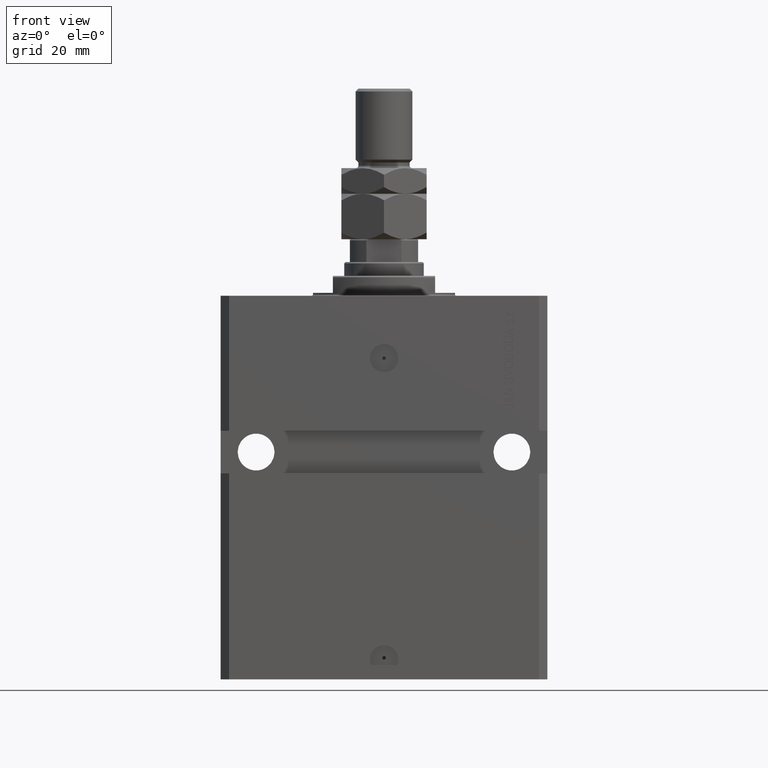
[diagram: clean part render]
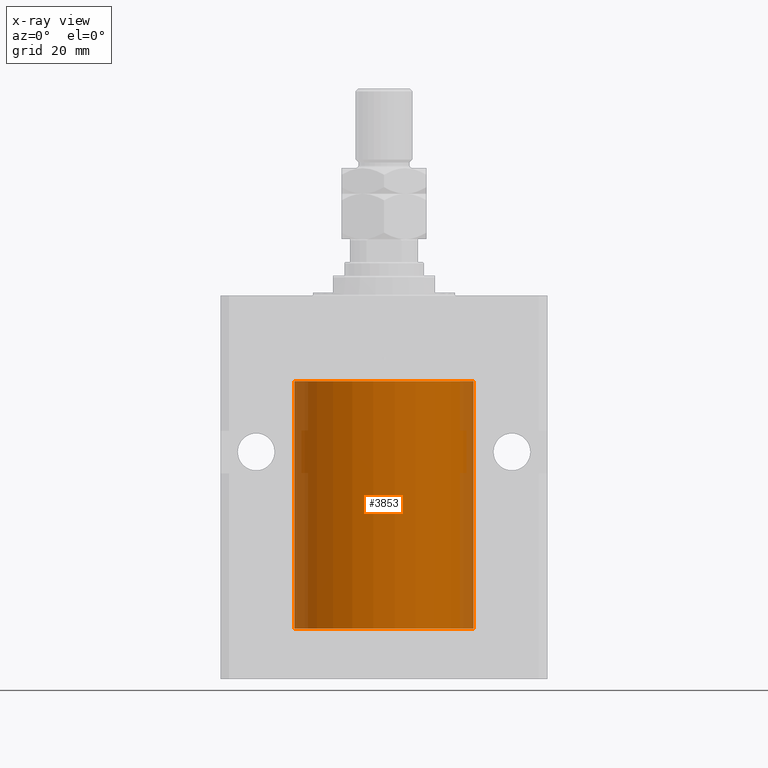
[diagram: x-ray — body ghosted, one internal face saturated and labeled with its STEP entity id]
A machine part, front view, then the same camera in x-ray: the body is ghosted and one INTERNAL B-rep face — a face not visible from any outside direction — is saturated and labeled: STEP entity #3853.
In plain terms, the highlighted cylindrical surface (partial cylindrical patch) has radius 31.5 mm, axis along (0, 0, 1).
Its self-contained STEP definition (entity closure, byte-faithful):
#755 = CARTESIAN_POINT ( 'NONE',  ( 0.000000000000000000, 0.000000000000000000, -117.0999999999999943 ) ) ;
#784 = EDGE_CURVE ( 'NONE', #49565, #29878, #47738, .T. ) ;
#1030 = CARTESIAN_POINT ( 'NONE',  ( -31.50000000000000000, 3.857637417314162689E-15, -117.0999999999999943 ) ) ;
#1051 = CARTESIAN_POINT ( 'NONE',  ( 0.000000000000000000, 0.000000000000000000, -117.0999999999999943 ) ) ;
#1139 = DIRECTION ( 'NONE',  ( 0.000000000000000000, 0.000000000000000000, 1.000000000000000000 ) ) ;
#3170 = CARTESIAN_POINT ( 'NONE',  ( -31.49379625064871391, -0.6251381781549172345, -113.8356839311847466 ) ) ;
#3665 = CARTESIAN_POINT ( 'NONE',  ( -31.49999999999999289, -0.1651478413229920950, -113.3749999999999858 ) ) ;
#3853 = ADVANCED_FACE ( 'NONE', ( #39853 ), #40358, .F. ) ;
#5444 = CARTESIAN_POINT ( 'NONE',  ( 0.000000000000000000, 0.000000000000000000, -30.10000000000000142 ) ) ;
#5575 = DIRECTION ( 'NONE',  ( 1.000000000000000000, 0.000000000000000000, 0.000000000000000000 ) ) ;
#5600 = CARTESIAN_POINT ( 'NONE',  ( -31.50000000000006395, 3.480981129463732167E-13, -114.6250000000032401 ) ) ;
#5623 = VERTEX_POINT ( 'NONE', #49435 ) ;
#7573 = ORIENTED_EDGE ( 'NONE', *, *, #24970, .T. ) ;
#7840 = CIRCLE ( 'NONE', #16729, 31.50000000000000000 ) ;
#9106 = CARTESIAN_POINT ( 'NONE',  ( -31.50000000000000000, 3.857637417314162689E-15, -30.10000000000000142 ) ) ;
#9147 = ORIENTED_EDGE ( 'NONE', *, *, #34776, .T. ) ;
#9417 = DIRECTION ( 'NONE',  ( 0.000000000000000000, 0.000000000000000000, 1.000000000000000000 ) ) ;
#10788 = CARTESIAN_POINT ( 'NONE',  ( 31.50000000000000000, 0.000000000000000000, -117.0999999999999943 ) ) ;
#11027 = DIRECTION ( 'NONE',  ( -0.000000000000000000, -0.000000000000000000, 1.000000000000000000 ) ) ;
#11974 = VERTEX_POINT ( 'NONE', #13248 ) ;
#13248 = CARTESIAN_POINT ( 'NONE',  ( -31.50000000000000000, -2.862469004324082213E-15, -113.3750000000000000 ) ) ;
#13372 = CARTESIAN_POINT ( 'NONE',  ( 31.50000000000000000, 0.000000000000000000, -30.10000000000000142 ) ) ;
#13915 = DIRECTION ( 'NONE',  ( -0.000000000000000000, -0.000000000000000000, 1.000000000000000000 ) ) ;
#14613 = AXIS2_PLACEMENT_3D ( 'NONE', #755, #17246, #5575 ) ;
#14842 = CARTESIAN_POINT ( 'NONE',  ( -31.49528704891774211, -0.5569519313505083558, -114.3270938121662539 ) ) ;
#16729 = AXIS2_PLACEMENT_3D ( 'NONE', #1051, #9417, #36831 ) ;
#17095 = VECTOR ( 'NONE', #11027, 1000.000000000000000 ) ;
#17246 = DIRECTION ( 'NONE',  ( -0.000000000000000000, -0.000000000000000000, 1.000000000000000000 ) ) ;
#17277 = ORIENTED_EDGE ( 'NONE', *, *, #784, .T. ) ;
#17446 = LINE ( 'NONE', #44906, #42791 ) ;
#18433 = ORIENTED_EDGE ( 'NONE', *, *, #39425, .F. ) ;
#22689 = VERTEX_POINT ( 'NONE', #46340 ) ;
#24970 = EDGE_CURVE ( 'NONE', #11974, #49565, #39364, .T. ) ;
#25163 = VERTEX_POINT ( 'NONE', #5600 ) ;
#25990 = CARTESIAN_POINT ( 'NONE',  ( -31.50000000000000000, -0.1631292369235416984, -114.6250000000001563 ) ) ;
#29878 = VERTEX_POINT ( 'NONE', #13372 ) ;
#29971 = EDGE_CURVE ( 'NONE', #22689, #29878, #42022, .T. ) ;
#32492 = DIRECTION ( 'NONE',  ( -0.000000000000000000, -0.000000000000000000, 1.000000000000000000 ) ) ;
#34125 = CARTESIAN_POINT ( 'NONE',  ( -31.50000000000006395, 3.480981129463732167E-13, -114.6250000000032401 ) ) ;
#34776 = EDGE_CURVE ( 'NONE', #25163, #11974, #43326, .T. ) ;
#35157 = DIRECTION ( 'NONE',  ( 1.000000000000000000, 0.000000000000000000, 0.000000000000000000 ) ) ;
#36831 = DIRECTION ( 'NONE',  ( 1.000000000000000000, 0.000000000000000000, 0.000000000000000000 ) ) ;
#37301 = VECTOR ( 'NONE', #32492, 1000.000000000000000 ) ;
#39364 = LINE ( 'NONE', #1030, #37301 ) ;
#39425 = EDGE_CURVE ( 'NONE', #5623, #22689, #7840, .T. ) ;
#39853 = FACE_OUTER_BOUND ( 'NONE', #48660, .T. ) ;
#40358 = CYLINDRICAL_SURFACE ( 'NONE', #14613, 31.50000000000000000 ) ;
#41402 = ORIENTED_EDGE ( 'NONE', *, *, #29971, .F. ) ;
#41517 = CARTESIAN_POINT ( 'NONE',  ( -31.49380174372966223, -0.6248613812773637921, -114.1653655539884369 ) ) ;
#42022 = LINE ( 'NONE', #10788, #17095 ) ;
#42267 = CARTESIAN_POINT ( 'NONE',  ( -31.49851430197701063, -0.3269482044720602998, -113.4429011246694188 ) ) ;
#42791 = VECTOR ( 'NONE', #13915, 1000.000000000000000 ) ;
#43326 = B_SPLINE_CURVE_WITH_KNOTS ( 'NONE', 3,
 ( #34125, #25990, #45596, #14842, #41517, #3170, #45333, #42267, #3665, #49411 ),
 .UNSPECIFIED., .F., .F.,
 ( 4, 2, 2, 2, 4 ),
 ( 0.001954083649707762538, 0.002442494148669354520, 0.002930904647630946935, 0.003419315146592538917, 0.003907725645554130899 ),
 .UNSPECIFIED. ) ;
#44088 = ORIENTED_EDGE ( 'NONE', *, *, #45629, .T. ) ;
#44906 = CARTESIAN_POINT ( 'NONE',  ( -31.50000000000000000, 3.857637417314162689E-15, -117.0999999999999943 ) ) ;
#45330 = AXIS2_PLACEMENT_3D ( 'NONE', #5444, #1139, #35157 ) ;
#45333 = CARTESIAN_POINT ( 'NONE',  ( -31.49527619204366857, -0.5575625051463252158, -113.6738430774043564 ) ) ;
#45596 = CARTESIAN_POINT ( 'NONE',  ( -31.49852099238383119, -0.3263081977449447946, -114.5574125724066619 ) ) ;
#45629 = EDGE_CURVE ( 'NONE', #5623, #25163, #17446, .T. ) ;
#46340 = CARTESIAN_POINT ( 'NONE',  ( 31.50000000000000000, 0.000000000000000000, -117.0999999999999943 ) ) ;
#47738 = CIRCLE ( 'NONE', #45330, 31.50000000000000000 ) ;
#48660 = EDGE_LOOP ( 'NONE', ( #18433, #44088, #9147, #7573, #17277, #41402 ) ) ;
#49411 = CARTESIAN_POINT ( 'NONE',  ( -31.50000000000000000, -2.862469004324082213E-15, -113.3750000000000000 ) ) ;
#49435 = CARTESIAN_POINT ( 'NONE',  ( -31.50000000000000000, 3.857637417314162689E-15, -117.0999999999999943 ) ) ;
#49565 = VERTEX_POINT ( 'NONE', #9106 ) ;